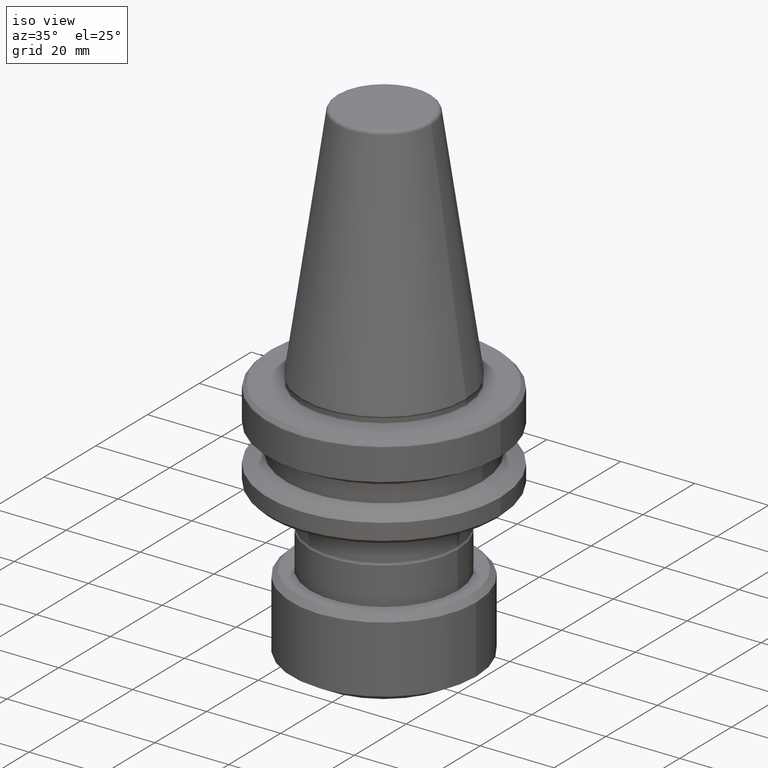
[diagram: clean part render]
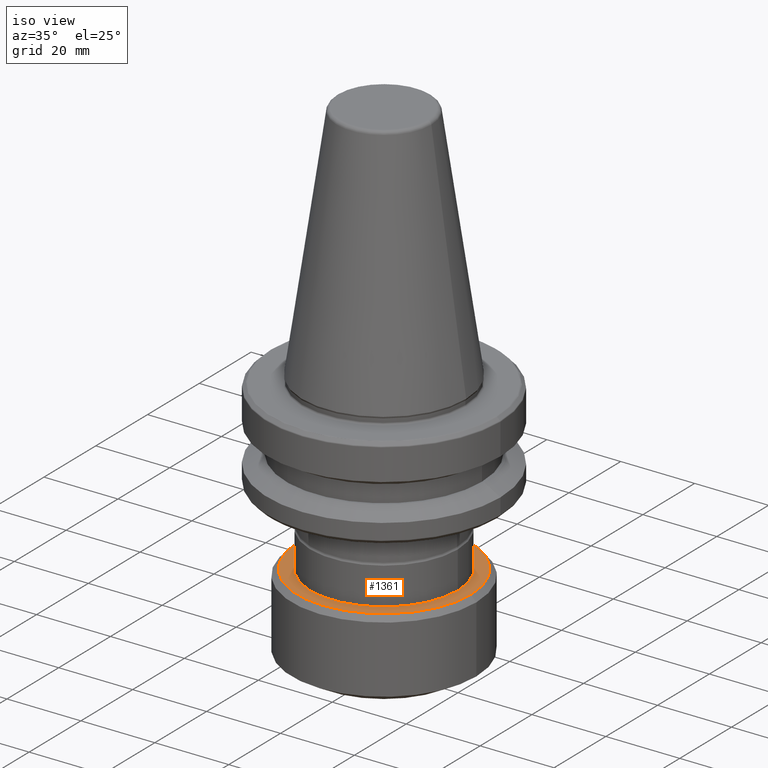
[diagram: same view with one face highlighted and labeled with its STEP entity id]
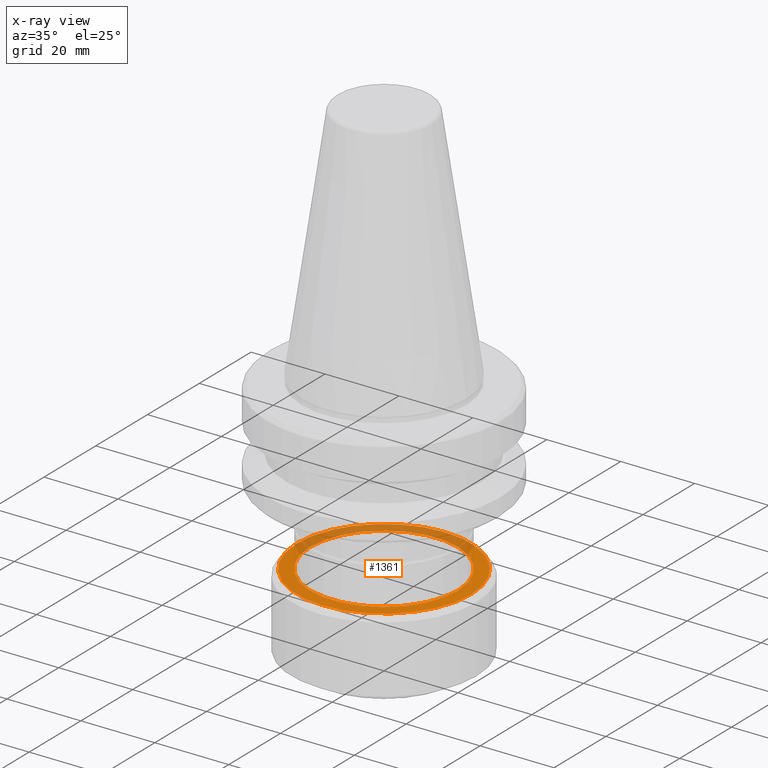
[diagram: x-ray of the same camera — body ghosted, the highlighted face saturated]
A machine part, iso view. The second image highlights one B-rep face of the part: STEP entity #1361.
The next image is the same camera in x-ray: the body ghosted, the highlighted face saturated — about 35% of this face is hidden behind the body in this view.
In plain terms, the highlighted planar face has unit normal (0, 0, 1).
Its self-contained STEP definition (entity closure, byte-faithful):
#8 = ORIENTED_EDGE ( 'NONE', *, *, #45, .F. ) ;
#23 = EDGE_CURVE ( 'NONE', #98, #622, #161, .T. ) ;
#45 = EDGE_CURVE ( 'NONE', #150, #719, #894, .T. ) ;
#53 = DIRECTION ( 'NONE',  ( 1.000000000000000000, 0.0000000000000000000, 0.0000000000000000000 ) ) ;
#86 = CARTESIAN_POINT ( 'NONE',  ( 0.0000000000000000000, 0.0000000000000000000, -47.50000000000000000 ) ) ;
#89 = AXIS2_PLACEMENT_3D ( 'NONE', #906, #912, #914 ) ;
#98 = VERTEX_POINT ( 'NONE', #264 ) ;
#109 = CIRCLE ( 'NONE', #89, 23.50000000000000000 ) ;
#135 = DIRECTION ( 'NONE',  ( -0.0000000000000000000, -0.0000000000000000000, -1.000000000000000000 ) ) ;
#143 = EDGE_CURVE ( 'NONE', #719, #150, #1302, .T. ) ;
#150 = VERTEX_POINT ( 'NONE', #362 ) ;
#161 = CIRCLE ( 'NONE', #1114, 23.50000000000000000 ) ;
#226 = FACE_BOUND ( 'NONE', #1286, .T. ) ;
#234 = DIRECTION ( 'NONE',  ( 0.0000000000000000000, 0.0000000000000000000, 1.000000000000000000 ) ) ;
#264 = CARTESIAN_POINT ( 'NONE',  ( -23.50000000000000000, 0.0000000000000000000, -47.49999999999999300 ) ) ;
#300 = AXIS2_PLACEMENT_3D ( 'NONE', #86, #234, #53 ) ;
#358 = CARTESIAN_POINT ( 'NONE',  ( 0.0000000000000000000, 0.0000000000000000000, -47.49999999999999300 ) ) ;
#362 = CARTESIAN_POINT ( 'NONE',  ( -19.94999999999999600, 2.443170364298969000E-015, -47.50000000000000000 ) ) ;
#376 = CARTESIAN_POINT ( 'NONE',  ( 0.0000000000000000000, 0.0000000000000000000, -47.50000000000000000 ) ) ;
#378 = DIRECTION ( 'NONE',  ( 0.0000000000000000000, 0.0000000000000000000, 1.000000000000000000 ) ) ;
#379 = DIRECTION ( 'NONE',  ( 1.000000000000000000, 0.0000000000000000000, 0.0000000000000000000 ) ) ;
#433 = EDGE_CURVE ( 'NONE', #622, #98, #109, .T. ) ;
#469 = EDGE_LOOP ( 'NONE', ( #825, #774 ) ) ;
#497 = FACE_OUTER_BOUND ( 'NONE', #469, .T. ) ;
#605 = DIRECTION ( 'NONE',  ( -1.000000000000000000, 0.0000000000000000000, 0.0000000000000000000 ) ) ;
#622 = VERTEX_POINT ( 'NONE', #1146 ) ;
#624 = AXIS2_PLACEMENT_3D ( 'NONE', #376, #378, #379 ) ;
#719 = VERTEX_POINT ( 'NONE', #1376 ) ;
#774 = ORIENTED_EDGE ( 'NONE', *, *, #433, .F. ) ;
#825 = ORIENTED_EDGE ( 'NONE', *, *, #23, .F. ) ;
#894 = CIRCLE ( 'NONE', #300, 19.94999999999999600 ) ;
#906 = CARTESIAN_POINT ( 'NONE',  ( 0.0000000000000000000, 0.0000000000000000000, -47.49999999999999300 ) ) ;
#912 = DIRECTION ( 'NONE',  ( -0.0000000000000000000, -0.0000000000000000000, -1.000000000000000000 ) ) ;
#914 = DIRECTION ( 'NONE',  ( -1.000000000000000000, 0.0000000000000000000, 0.0000000000000000000 ) ) ;
#1097 = AXIS2_PLACEMENT_3D ( 'NONE', #1437, #1490, #1463 ) ;
#1114 = AXIS2_PLACEMENT_3D ( 'NONE', #358, #135, #605 ) ;
#1146 = CARTESIAN_POINT ( 'NONE',  ( 23.50000000000000000, 2.969768487932332100E-015, -47.49999999999999300 ) ) ;
#1234 = ORIENTED_EDGE ( 'NONE', *, *, #143, .F. ) ;
#1286 = EDGE_LOOP ( 'NONE', ( #1234, #8 ) ) ;
#1302 = CIRCLE ( 'NONE', #624, 19.94999999999999600 ) ;
#1353 = PLANE ( 'NONE',  #1097 ) ;
#1361 = ADVANCED_FACE ( 'NONE', ( #497, #226 ), #1353, .T. ) ;
#1376 = CARTESIAN_POINT ( 'NONE',  ( 19.94999999999999600, 0.0000000000000000000, -47.50000000000000000 ) ) ;
#1437 = CARTESIAN_POINT ( 'NONE',  ( 0.0000000000000000000, 0.0000000000000000000, -47.49999999999999300 ) ) ;
#1463 = DIRECTION ( 'NONE',  ( 1.000000000000000000, 0.0000000000000000000, -0.0000000000000000000 ) ) ;
#1490 = DIRECTION ( 'NONE',  ( 0.0000000000000000000, 0.0000000000000000000, 1.000000000000000000 ) ) ;